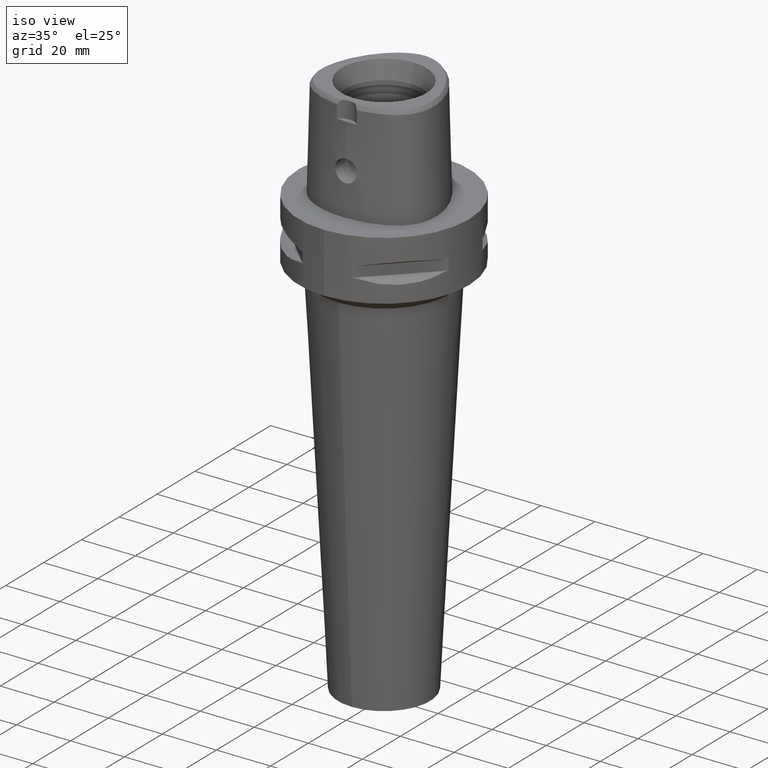
[diagram: clean part render]
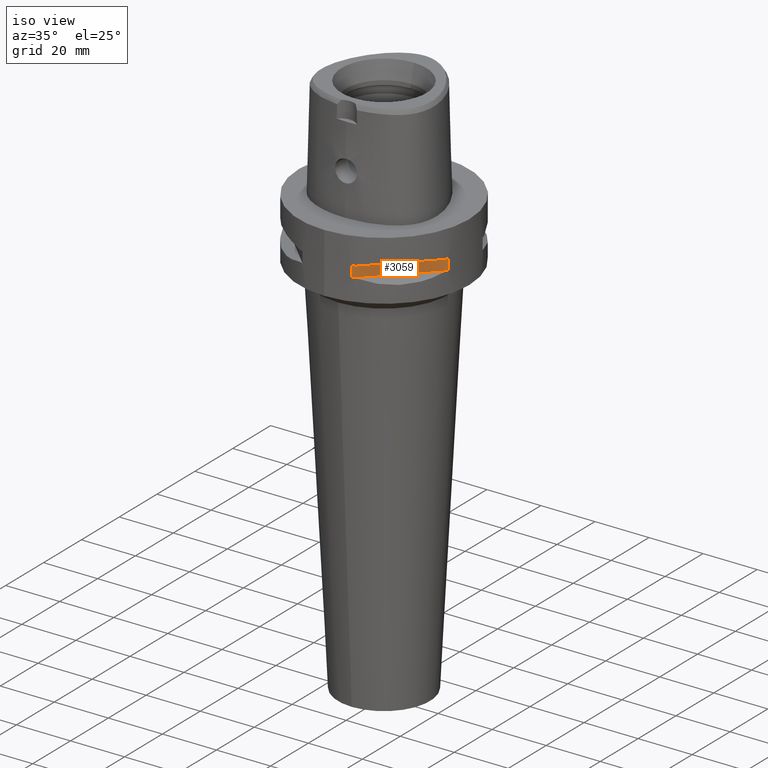
[diagram: same view with one face highlighted and labeled with its STEP entity id]
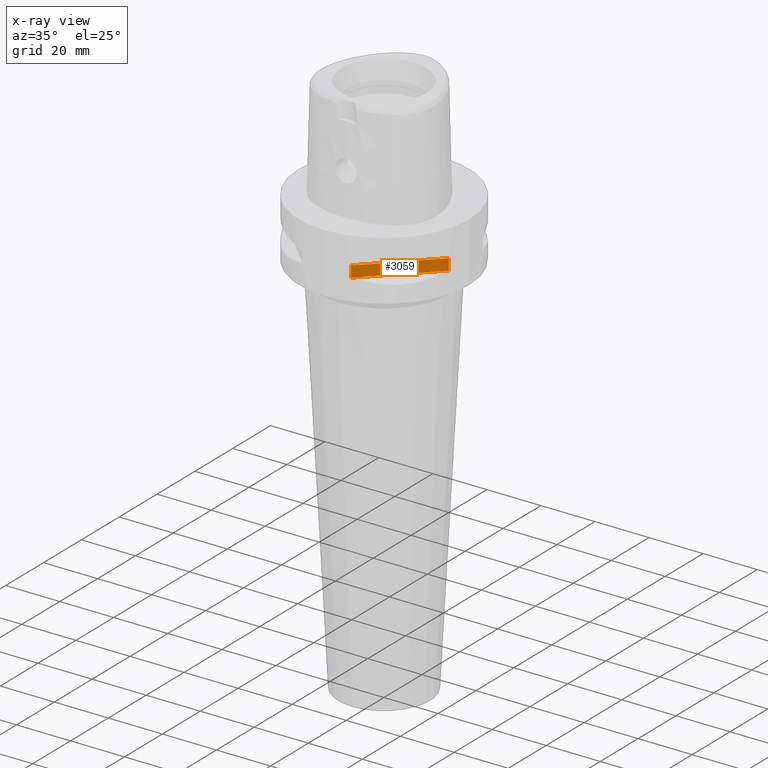
[diagram: x-ray of the same camera — body ghosted, the highlighted face saturated]
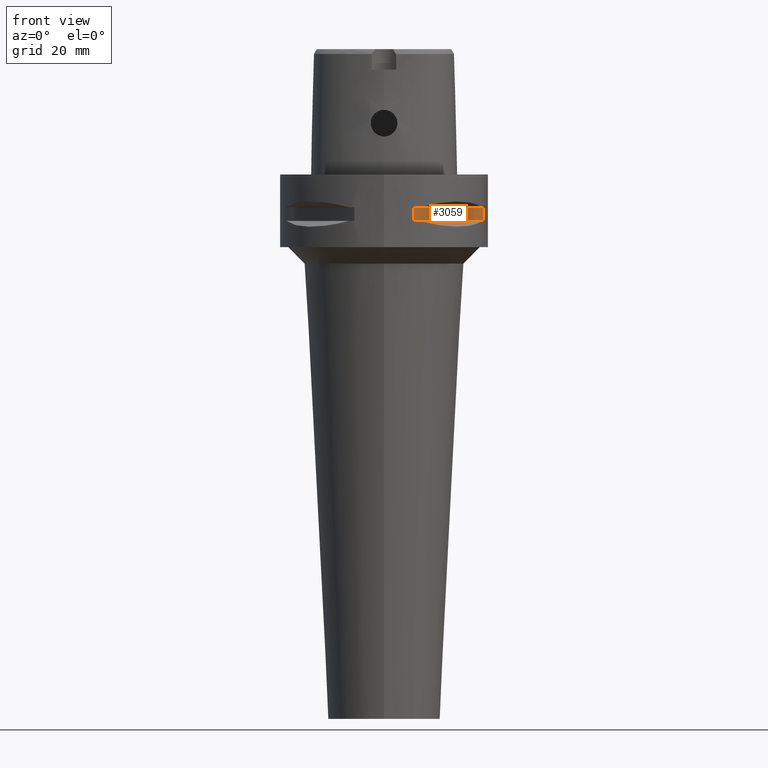
[diagram: same view with one face highlighted and labeled with its STEP entity id]
A machine part, iso view. The second image highlights one B-rep face of the part: STEP entity #3059.
The next image is the same camera in x-ray: the body ghosted, the highlighted face saturated — about 0% of this face is hidden behind the body in this view.
A second angle (front view) of the same face is appended — the face is thin or edge-on in the first view.
In plain terms, the highlighted planar face has unit normal (-0.7071, 0.7071, 0).
Its self-contained STEP definition (entity closure, byte-faithful):
#435=DIRECTION('',(0.E0,0.E0,-1.E0));
#436=VECTOR('',#435,4.1E0);
#437=CARTESIAN_POINT('',(8.981198972017E0,-3.019251670572E1,-9.95E0));
#438=LINE('',#437,#436);
#453=DIRECTION('',(0.E0,0.E0,1.E0));
#454=VECTOR('',#453,4.1E0);
#455=CARTESIAN_POINT('',(3.019251670572E1,-8.981198972017E0,-1.405E1));
#456=LINE('',#455,#454);
#1182=DIRECTION('',(7.071067811865E-1,7.071067811865E-1,0.E0));
#1183=VECTOR('',#1182,2.999733321480E1);
#1184=CARTESIAN_POINT('',(8.981198972017E0,-3.019251670572E1,-9.95E0));
#1185=LINE('',#1184,#1183);
#1205=DIRECTION('',(7.071067811865E-1,7.071067811865E-1,0.E0));
#1206=VECTOR('',#1205,2.999733321480E1);
#1207=CARTESIAN_POINT('',(8.981198972017E0,-3.019251670572E1,-1.405E1));
#1208=LINE('',#1207,#1206);
#1494=CARTESIAN_POINT('',(8.981198972020E0,-3.019251670572E1,-9.95E0));
#1495=VERTEX_POINT('',#1494);
#1496=CARTESIAN_POINT('',(8.981198972017E0,-3.019251670572E1,-1.405E1));
#1497=VERTEX_POINT('',#1496);
#1501=CARTESIAN_POINT('',(3.019251670572E1,-8.981198972020E0,-1.405E1));
#1502=VERTEX_POINT('',#1501);
#1503=CARTESIAN_POINT('',(3.019251670572E1,-8.981198972017E0,-9.95E0));
#1504=VERTEX_POINT('',#1503);
#3047=CARTESIAN_POINT('',(3.726452736853E1,-1.909188309204E0,-9.95E0));
#3048=DIRECTION('',(-7.071067811865E-1,7.071067811865E-1,0.E0));
#3049=DIRECTION('',(0.E0,0.E0,-1.E0));
#3050=AXIS2_PLACEMENT_3D('',#3047,#3048,#3049);
#3051=PLANE('',#3050);
#3052=ORIENTED_EDGE('',*,*,#2364,.F.);
#3054=ORIENTED_EDGE('',*,*,#3053,.F.);
#3055=ORIENTED_EDGE('',*,*,#2356,.F.);
#3056=ORIENTED_EDGE('',*,*,#3040,.T.);
#3057=EDGE_LOOP('',(#3052,#3054,#3055,#3056));
#3058=FACE_OUTER_BOUND('',#3057,.F.);
#2356=EDGE_CURVE('',#1495,#1497,#438,.T.);
#2364=EDGE_CURVE('',#1502,#1504,#456,.T.);
#3040=EDGE_CURVE('',#1495,#1504,#1185,.T.);
#3053=EDGE_CURVE('',#1497,#1502,#1208,.T.);
#3059=ADVANCED_FACE('',(#3058),#3051,.F.);